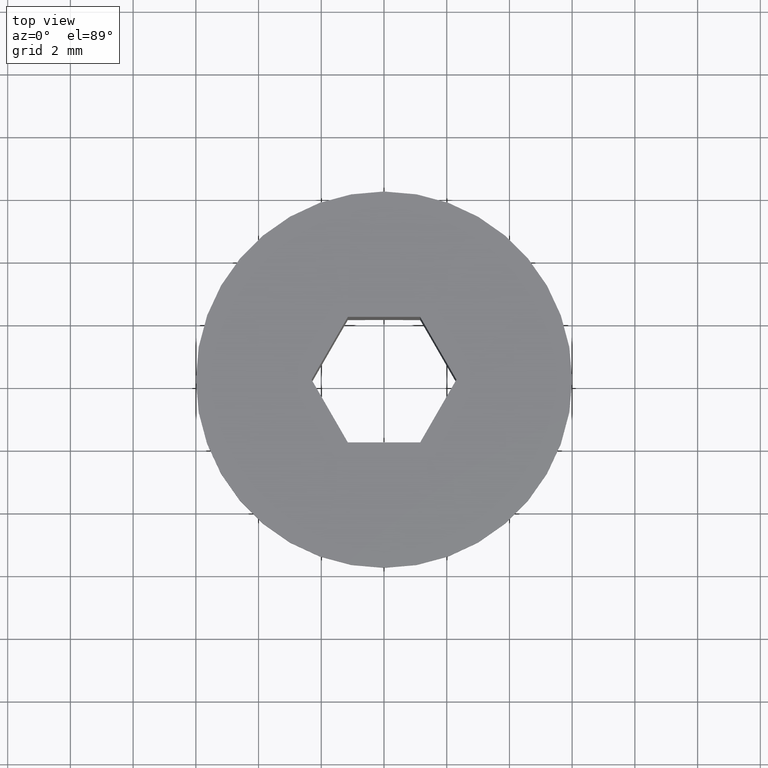
[diagram: clean part render]
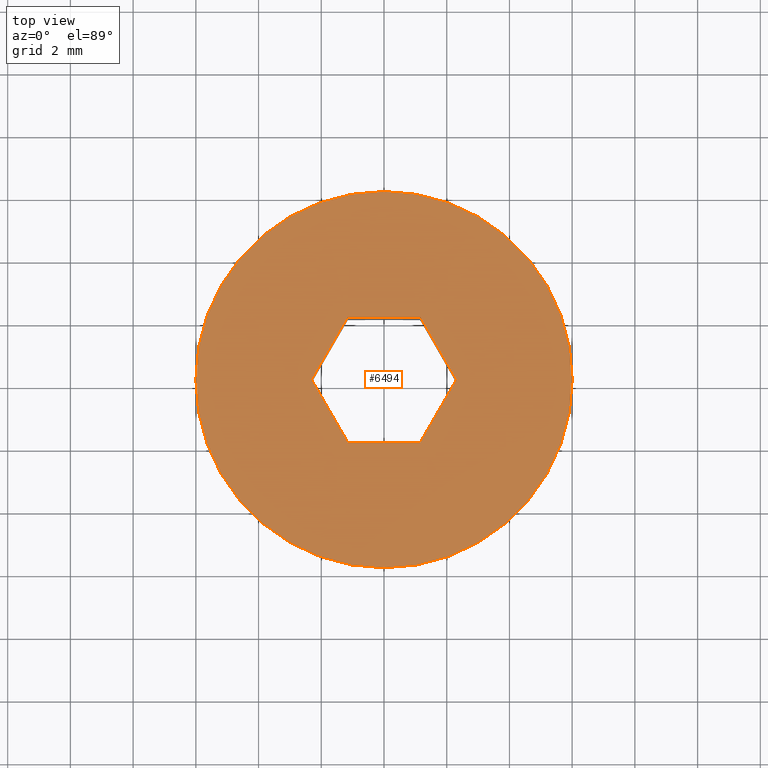
[diagram: same view with one face highlighted and labeled with its STEP entity id]
A machine part, top view. The second image highlights one B-rep face of the part: STEP entity #6494.
In plain terms, the highlighted planar face has unit normal (0, 0, 1).
Its self-contained STEP definition (entity closure, byte-faithful):
#23 = VECTOR ( 'NONE', #3235, 1000.000000000000000 ) ;
#69 = CARTESIAN_POINT ( 'NONE',  ( 0.0000000000000000000, -1.898202538678397600E-015, 8.000000000000000000 ) ) ;
#243 = VERTEX_POINT ( 'NONE', #12927 ) ;
#826 = CARTESIAN_POINT ( 'NONE',  ( -1.154700538379251000, -2.000000000000001800, 8.000000000000000000 ) ) ;
#857 = VECTOR ( 'NONE', #1089, 999.9999999999998900 ) ;
#1089 = DIRECTION ( 'NONE',  ( -0.5000000000000002200, -0.8660254037844386000, 0.0000000000000000000 ) ) ;
#1139 = LINE ( 'NONE', #1359, #13421 ) ;
#1359 = CARTESIAN_POINT ( 'NONE',  ( -1.154700538379251000, -2.000000000000001800, 8.000000000000000000 ) ) ;
#1602 = AXIS2_PLACEMENT_3D ( 'NONE', #13827, #2526, #14942 ) ;
#1655 = LINE ( 'NONE', #3962, #1841 ) ;
#1841 = VECTOR ( 'NONE', #8963, 1000.000000000000000 ) ;
#1848 = EDGE_CURVE ( 'NONE', #243, #10523, #10038, .T. ) ;
#2002 = CARTESIAN_POINT ( 'NONE',  ( -2.309401076758503400, -8.701860912997102300E-016, 8.000000000000000000 ) ) ;
#2069 = ORIENTED_EDGE ( 'NONE', *, *, #9676, .F. ) ;
#2526 = DIRECTION ( 'NONE',  ( 0.0000000000000000000, 0.0000000000000000000, 1.000000000000000000 ) ) ;
#3001 = VERTEX_POINT ( 'NONE', #4104 ) ;
#3235 = DIRECTION ( 'NONE',  ( 0.5000000000000001100, -0.8660254037844386000, 0.0000000000000000000 ) ) ;
#3369 = VERTEX_POINT ( 'NONE', #4118 ) ;
#3962 = CARTESIAN_POINT ( 'NONE',  ( 1.154700538379251200, 1.999999999999998200, 8.000000000000000000 ) ) ;
#3978 = PLANE ( 'NONE',  #1602 ) ;
#4060 = DIRECTION ( 'NONE',  ( -0.0000000000000000000, -0.0000000000000000000, -1.000000000000000000 ) ) ;
#4104 = CARTESIAN_POINT ( 'NONE',  ( -6.000000000000000000, -1.898202538678397600E-015, 8.000000000000000000 ) ) ;
#4112 = DIRECTION ( 'NONE',  ( -1.000000000000000000, 0.0000000000000000000, 0.0000000000000000000 ) ) ;
#4118 = CARTESIAN_POINT ( 'NONE',  ( 1.154700538379251700, -2.000000000000001800, 8.000000000000000000 ) ) ;
#4223 = DIRECTION ( 'NONE',  ( 0.5000000000000002200, 0.8660254037844384900, 0.0000000000000000000 ) ) ;
#4456 = LINE ( 'NONE', #14476, #857 ) ;
#5585 = EDGE_CURVE ( 'NONE', #10523, #7235, #1655, .T. ) ;
#5655 = EDGE_CURVE ( 'NONE', #3369, #243, #14510, .T. ) ;
#5658 = FACE_OUTER_BOUND ( 'NONE', #14598, .T. ) ;
#6119 = CARTESIAN_POINT ( 'NONE',  ( 1.154700538379251200, 1.999999999999998200, 8.000000000000000000 ) ) ;
#6166 = CIRCLE ( 'NONE', #13327, 6.000000000000000000 ) ;
#6494 = ADVANCED_FACE ( 'NONE', ( #15458, #5658 ), #3978, .T. ) ;
#6683 = ORIENTED_EDGE ( 'NONE', *, *, #5655, .F. ) ;
#6819 = ORIENTED_EDGE ( 'NONE', *, *, #5585, .F. ) ;
#7235 = VERTEX_POINT ( 'NONE', #11495 ) ;
#7672 = ORIENTED_EDGE ( 'NONE', *, *, #10668, .F. ) ;
#7715 = CARTESIAN_POINT ( 'NONE',  ( 0.0000000000000000000, -1.898202538678397600E-015, 8.000000000000000000 ) ) ;
#8034 = VERTEX_POINT ( 'NONE', #13885 ) ;
#8448 = DIRECTION ( 'NONE',  ( -0.0000000000000000000, -0.0000000000000000000, -1.000000000000000000 ) ) ;
#8469 = CIRCLE ( 'NONE', #15092, 6.000000000000000000 ) ;
#8532 = CARTESIAN_POINT ( 'NONE',  ( 2.309401076758503400, -1.532772604768279400E-015, 8.000000000000000000 ) ) ;
#8610 = DIRECTION ( 'NONE',  ( -1.000000000000000000, 0.0000000000000000000, 0.0000000000000000000 ) ) ;
#8872 = VECTOR ( 'NONE', #14604, 1000.000000000000100 ) ;
#8963 = DIRECTION ( 'NONE',  ( -1.000000000000000000, -1.877893248421449000E-016, 0.0000000000000000000 ) ) ;
#9020 = VERTEX_POINT ( 'NONE', #826 ) ;
#9676 = EDGE_CURVE ( 'NONE', #8034, #3001, #6166, .T. ) ;
#9827 = ORIENTED_EDGE ( 'NONE', *, *, #11608, .F. ) ;
#10038 = LINE ( 'NONE', #8532, #8872 ) ;
#10297 = ORIENTED_EDGE ( 'NONE', *, *, #1848, .F. ) ;
#10513 = EDGE_CURVE ( 'NONE', #12751, #9020, #13052, .T. ) ;
#10523 = VERTEX_POINT ( 'NONE', #6119 ) ;
#10529 = EDGE_LOOP ( 'NONE', ( #7672, #12238, #9827, #6819, #10297, #6683 ) ) ;
#10668 = EDGE_CURVE ( 'NONE', #9020, #3369, #1139, .T. ) ;
#11381 = DIRECTION ( 'NONE',  ( 1.000000000000000000, 0.0000000000000000000, 0.0000000000000000000 ) ) ;
#11495 = CARTESIAN_POINT ( 'NONE',  ( -1.154700538379252100, 1.999999999999997800, 8.000000000000000000 ) ) ;
#11608 = EDGE_CURVE ( 'NONE', #7235, #12751, #4456, .T. ) ;
#12238 = ORIENTED_EDGE ( 'NONE', *, *, #10513, .F. ) ;
#12563 = EDGE_CURVE ( 'NONE', #3001, #8034, #8469, .T. ) ;
#12751 = VERTEX_POINT ( 'NONE', #15269 ) ;
#12927 = CARTESIAN_POINT ( 'NONE',  ( 2.309401076758503400, -1.532772604768279400E-015, 8.000000000000000000 ) ) ;
#13052 = LINE ( 'NONE', #2002, #23 ) ;
#13327 = AXIS2_PLACEMENT_3D ( 'NONE', #7715, #4060, #4112 ) ;
#13421 = VECTOR ( 'NONE', #11381, 1000.000000000000000 ) ;
#13551 = VECTOR ( 'NONE', #4223, 1000.000000000000100 ) ;
#13827 = CARTESIAN_POINT ( 'NONE',  ( 0.0000000000000000000, -1.898202538678397600E-015, 8.000000000000000000 ) ) ;
#13885 = CARTESIAN_POINT ( 'NONE',  ( 6.000000000000000000, -1.163414459189985700E-015, 8.000000000000000000 ) ) ;
#14110 = CARTESIAN_POINT ( 'NONE',  ( 1.154700538379251200, -2.000000000000001800, 8.000000000000000000 ) ) ;
#14147 = ORIENTED_EDGE ( 'NONE', *, *, #12563, .F. ) ;
#14476 = CARTESIAN_POINT ( 'NONE',  ( -1.154700538379252100, 1.999999999999997800, 8.000000000000000000 ) ) ;
#14510 = LINE ( 'NONE', #14110, #13551 ) ;
#14598 = EDGE_LOOP ( 'NONE', ( #14147, #2069 ) ) ;
#14604 = DIRECTION ( 'NONE',  ( -0.5000000000000002200, 0.8660254037844384900, 0.0000000000000000000 ) ) ;
#14942 = DIRECTION ( 'NONE',  ( 1.000000000000000000, 0.0000000000000000000, -0.0000000000000000000 ) ) ;
#15092 = AXIS2_PLACEMENT_3D ( 'NONE', #69, #8448, #8610 ) ;
#15269 = CARTESIAN_POINT ( 'NONE',  ( -2.309401076758503400, -8.701860912997102300E-016, 8.000000000000000000 ) ) ;
#15458 = FACE_BOUND ( 'NONE', #10529, .T. ) ;